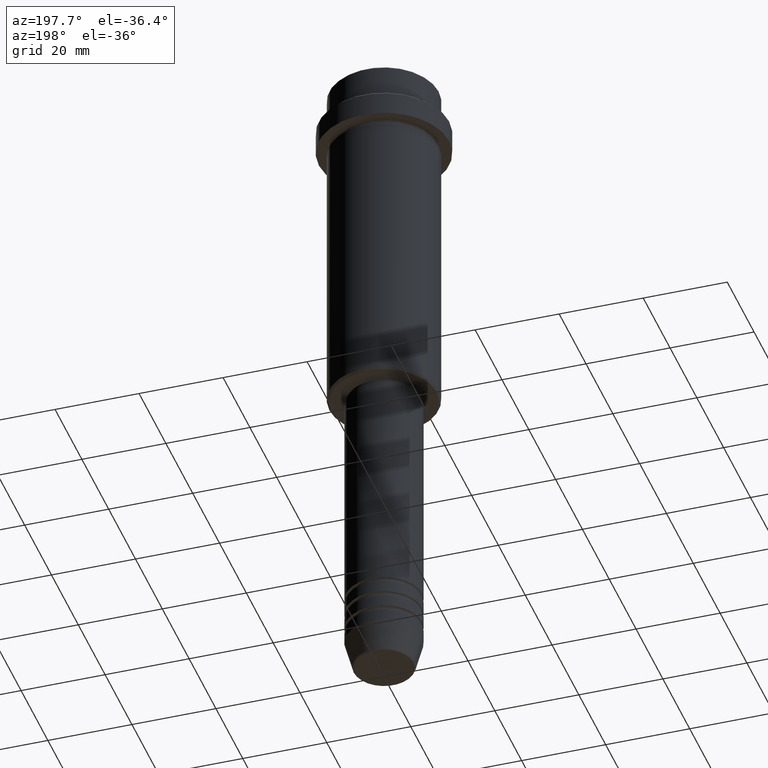
[diagram: clean part render]
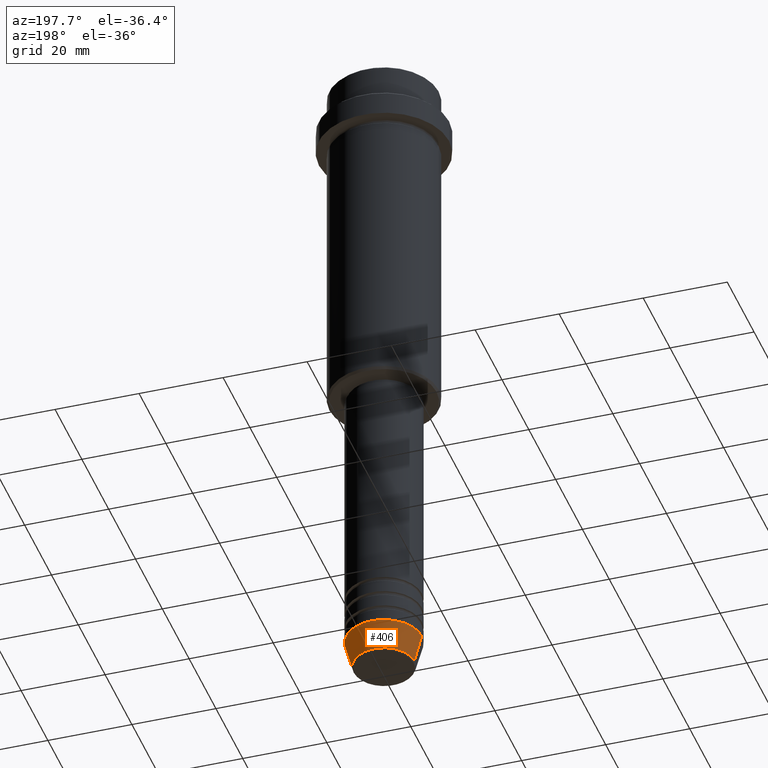
[diagram: same view with one face highlighted and labeled with its STEP entity id]
A machine part, auxiliary view. The second image highlights one B-rep face of the part: STEP entity #406.
In plain terms, the highlighted conical surface has half-angle 15 deg.
Its self-contained STEP definition (entity closure, byte-faithful):
#32 = ORIENTED_EDGE ( 'NONE', *, *, #537, .T. ) ;
#83 = EDGE_CURVE ( 'NONE', #1049, #227, #730, .T. ) ;
#97 = CIRCLE ( 'NONE', #1260, 7.223655072137188604 ) ;
#182 = VECTOR ( 'NONE', #1162, 1000.000000000000000 ) ;
#221 = DIRECTION ( 'NONE',  ( -0.000000000000000000, -0.000000000000000000, 1.000000000000000000 ) ) ;
#227 = VERTEX_POINT ( 'NONE', #1020 ) ;
#236 = AXIS2_PLACEMENT_3D ( 'NONE', #796, #221, #1350 ) ;
#256 = ORIENTED_EDGE ( 'NONE', *, *, #356, .T. ) ;
#257 = DIRECTION ( 'NONE',  ( 1.000000000000000000, 0.000000000000000000, 0.000000000000000000 ) ) ;
#284 = LINE ( 'NONE', #611, #344 ) ;
#344 = VECTOR ( 'NONE', #807, 1000.000000000000000 ) ;
#356 = EDGE_CURVE ( 'NONE', #1141, #908, #284, .T. ) ;
#386 = ORIENTED_EDGE ( 'NONE', *, *, #83, .F. ) ;
#406 = ADVANCED_FACE ( 'NONE', ( #717 ), #597, .T. ) ;
#537 = EDGE_CURVE ( 'NONE', #1049, #1141, #97, .T. ) ;
#566 = CARTESIAN_POINT ( 'NONE',  ( -7.223655072137189492, 9.934123627281765110E-16, -159.6294095225512706 ) ) ;
#597 = CONICAL_SURFACE ( 'NONE', #647, 9.000000000000000000, 0.2617993877991500740 ) ;
#610 = ORIENTED_EDGE ( 'NONE', *, *, #734, .F. ) ;
#611 = CARTESIAN_POINT ( 'NONE',  ( -9.000000000000000000, 1.102182119232617714E-15, -153.0000000000000000 ) ) ;
#647 = AXIS2_PLACEMENT_3D ( 'NONE', #827, #1234, #257 ) ;
#717 = FACE_OUTER_BOUND ( 'NONE', #1362, .T. ) ;
#728 = CARTESIAN_POINT ( 'NONE',  ( 0.000000000000000000, 0.000000000000000000, -159.6294095225512706 ) ) ;
#730 = LINE ( 'NONE', #852, #182 ) ;
#734 = EDGE_CURVE ( 'NONE', #227, #908, #1311, .T. ) ;
#747 = DIRECTION ( 'NONE',  ( 1.000000000000000000, 0.000000000000000000, 0.000000000000000000 ) ) ;
#796 = CARTESIAN_POINT ( 'NONE',  ( 0.000000000000000000, 0.000000000000000000, -153.0000000000000000 ) ) ;
#807 = DIRECTION ( 'NONE',  ( -0.2588190451025213501, 3.169619151431772337E-17, 0.9659258262890680902 ) ) ;
#820 = CARTESIAN_POINT ( 'NONE',  ( -9.000000000000000000, 1.102182119232617714E-15, -153.0000000000000000 ) ) ;
#827 = CARTESIAN_POINT ( 'NONE',  ( 0.000000000000000000, 0.000000000000000000, -153.0000000000000000 ) ) ;
#835 = DIRECTION ( 'NONE',  ( -0.000000000000000000, -0.000000000000000000, 1.000000000000000000 ) ) ;
#852 = CARTESIAN_POINT ( 'NONE',  ( 9.000000000000000000, 0.000000000000000000, -153.0000000000000000 ) ) ;
#908 = VERTEX_POINT ( 'NONE', #820 ) ;
#1020 = CARTESIAN_POINT ( 'NONE',  ( 9.000000000000000000, 0.000000000000000000, -153.0000000000000000 ) ) ;
#1049 = VERTEX_POINT ( 'NONE', #1318 ) ;
#1141 = VERTEX_POINT ( 'NONE', #566 ) ;
#1162 = DIRECTION ( 'NONE',  ( 0.2588190451025213501, 0.000000000000000000, 0.9659258262890680902 ) ) ;
#1234 = DIRECTION ( 'NONE',  ( -0.000000000000000000, -0.000000000000000000, 1.000000000000000000 ) ) ;
#1260 = AXIS2_PLACEMENT_3D ( 'NONE', #728, #835, #747 ) ;
#1311 = CIRCLE ( 'NONE', #236, 9.000000000000000000 ) ;
#1318 = CARTESIAN_POINT ( 'NONE',  ( 7.223655072137188604, 0.000000000000000000, -159.6294095225512706 ) ) ;
#1350 = DIRECTION ( 'NONE',  ( 1.000000000000000000, 0.000000000000000000, 0.000000000000000000 ) ) ;
#1362 = EDGE_LOOP ( 'NONE', ( #32, #256, #610, #386 ) ) ;